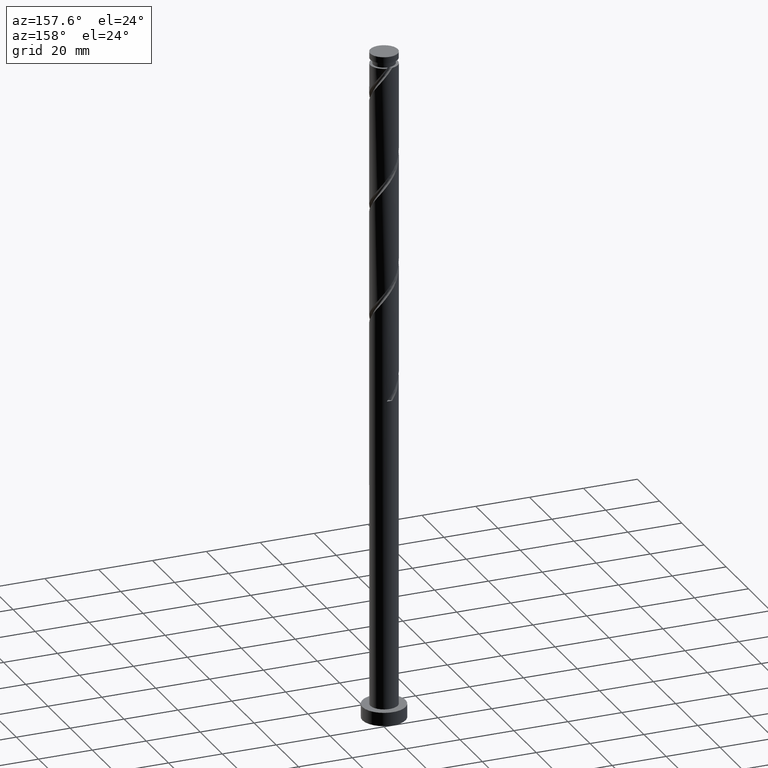
[diagram: clean part render]
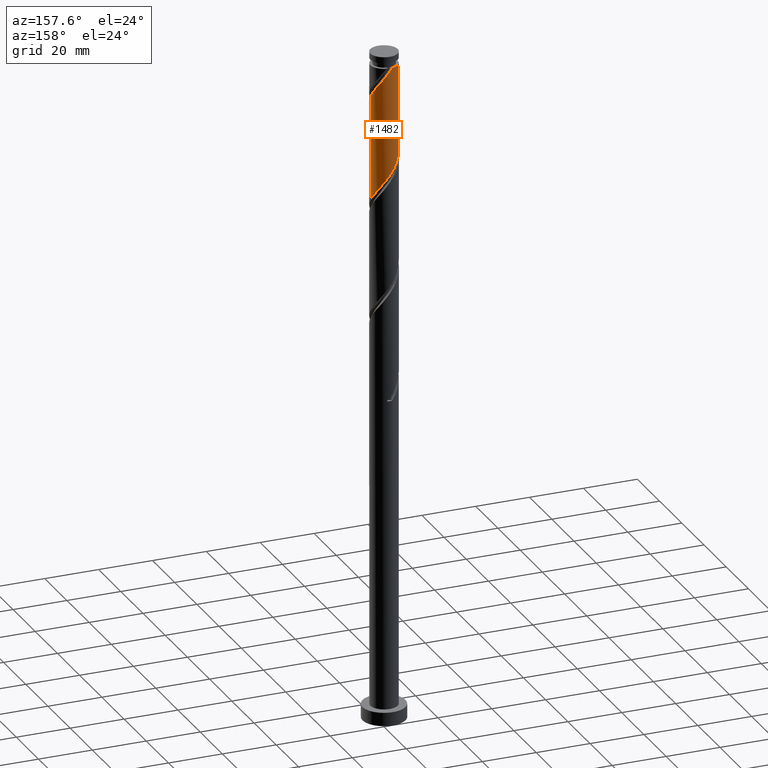
[diagram: same view with one face highlighted and labeled with its STEP entity id]
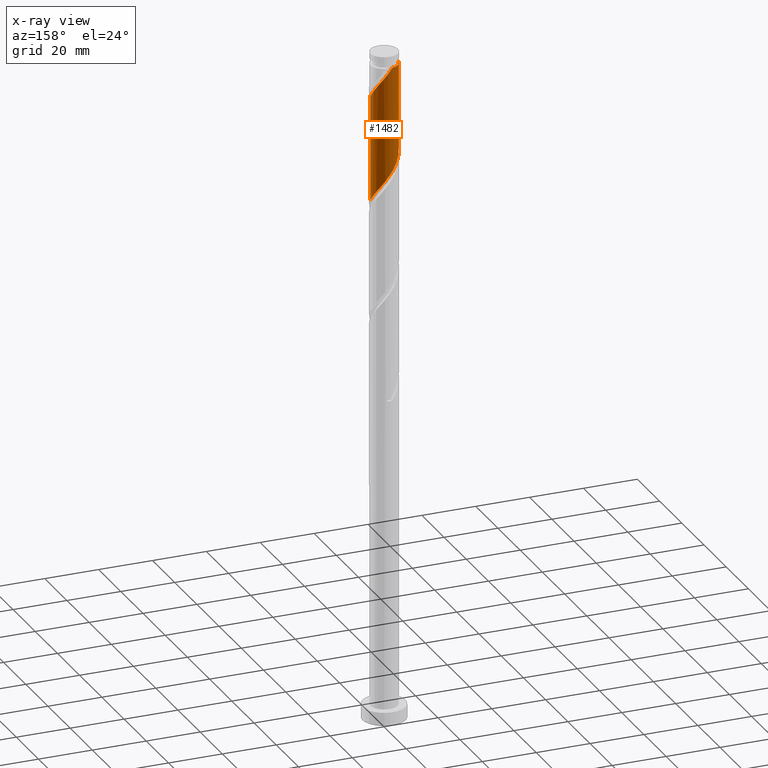
[diagram: x-ray of the same camera — body ghosted, the highlighted face saturated]
A machine part, auxiliary view. The second image highlights one B-rep face of the part: STEP entity #1482.
The next image is the same camera in x-ray: the body ghosted, the highlighted face saturated — about 0% of this face is hidden behind the body in this view.
In plain terms, the highlighted cylindrical surface (edge-blend (fillet) strip) has radius 5.1 mm, axis along (-0, -0, -1).
Its self-contained STEP definition (entity closure, byte-faithful):
#1 = FACE_OUTER_BOUND ( 'NONE', #1577, .T. ) ;
#38 = CARTESIAN_POINT ( 'NONE',  ( -3.536751729546626866, 3.674423383818059108, 210.3899012398653383 ) ) ;
#49 = CARTESIAN_POINT ( 'NONE',  ( 2.741237939645618571, 4.345007219726778835, 201.5757986757627691 ) ) ;
#57 = CARTESIAN_POINT ( 'NONE',  ( -4.313327225042888458, 2.721251228700470648, 211.9924653424294831 ) ) ;
#66 = CARTESIAN_POINT ( 'NONE',  ( 3.221324387942766876, 3.953867623940536369, 200.7745166244807535 ) ) ;
#79 = CARTESIAN_POINT ( 'NONE',  ( 2.018670203111976313, 4.724240022723055432, 241.6399012398653667 ) ) ;
#195 = CARTESIAN_POINT ( 'NONE',  ( 4.446471189112908284, 2.573396033574939512, 198.3706704706345647 ) ) ;
#203 = VECTOR ( 'NONE', #1481, 1000.000000000000000 ) ;
#226 = CARTESIAN_POINT ( 'NONE',  ( -4.839227820526198265, 1.609929843516564985, 213.5950294449935996 ) ) ;
#236 = CARTESIAN_POINT ( 'NONE',  ( 0.8294266765015260168, 5.070061594254859472, 243.2424653424294547 ) ) ;
#243 = CARTESIAN_POINT ( 'NONE',  ( 3.536751729546635303, 3.674423383818063105, 239.2360550860192347 ) ) ;
#253 = CARTESIAN_POINT ( 'NONE',  ( -1.014887185848785345, 4.997999999999972687, 245.6463114962757004 ) ) ;
#261 = CARTESIAN_POINT ( 'NONE',  ( 4.839227820526208923, 1.609929843516562320, 236.0309268808910872 ) ) ;
#269 = CARTESIAN_POINT ( 'NONE',  ( -1.014887185848785345, 4.997999999999972687, 245.6463114962757004 ) ) ;
#338 = VERTEX_POINT ( 'NONE', #1206 ) ;
#339 = CARTESIAN_POINT ( 'NONE',  ( 5.100000000000001421, 6.245698675651502811E-16, 250.0000000000000000 ) ) ;
#347 = CARTESIAN_POINT ( 'NONE',  ( -5.099999999999984546, 0.000000000000000000, 245.6463114962756435 ) ) ;
#397 = CARTESIAN_POINT ( 'NONE',  ( 5.100000000000009415, 0.2028429647175176431, 234.1658938693500147 ) ) ;
#435 = CARTESIAN_POINT ( 'NONE',  ( 5.100000000000010303, 3.858632141587965718E-15, 233.9017229537170977 ) ) ;
#470 = CARTESIAN_POINT ( 'NONE',  ( -5.099999999999999645, -5.683256642648979922E-16, 215.7242333721675038 ) ) ;
#478 = CARTESIAN_POINT ( 'NONE',  ( -5.034708694974681542, 1.022341204283935268, 214.3963114962756435 ) ) ;
#483 = CARTESIAN_POINT ( 'NONE',  ( -1.424048439806746780, 4.897150808488950346, 207.1847730347371623 ) ) ;
#492 = CARTESIAN_POINT ( 'NONE',  ( -4.643746946077711435, 2.197518482749192703, 212.7937473937114987 ) ) ;
#526 = DIRECTION ( 'NONE',  ( -0.000000000000000000, -0.000000000000000000, -1.000000000000000000 ) ) ;
#539 = CARTESIAN_POINT ( 'NONE',  ( 0.000000000000000000, 0.000000000000000000, 245.6463114962756435 ) ) ;
#561 = AXIS2_PLACEMENT_3D ( 'NONE', #539, #1093, #1133 ) ;
#575 = DIRECTION ( 'NONE',  ( -0.000000000000000000, -0.000000000000000000, -1.000000000000000000 ) ) ;
#629 = CARTESIAN_POINT ( 'NONE',  ( 3.701410836239911184, 3.562728028154290794, 199.9732345731987095 ) ) ;
#644 = CARTESIAN_POINT ( 'NONE',  ( -2.018670203111971428, 4.724240022723048327, 207.9860550860191779 ) ) ;
#681 = LINE ( 'NONE', #810, #1592 ) ;
#696 = CARTESIAN_POINT ( 'NONE',  ( 4.643746946077720317, 2.197518482749192703, 236.8322089321730175 ) ) ;
#704 = VERTEX_POINT ( 'NONE', #435 ) ;
#705 = CYLINDRICAL_SURFACE ( 'NONE', #1328, 5.100000000000001421 ) ;
#712 = VERTEX_POINT ( 'NONE', #1717 ) ;
#757 = CARTESIAN_POINT ( 'NONE',  ( 2.181496098819619256, 4.609888802437081878, 202.3770807270448984 ) ) ;
#771 = CARTESIAN_POINT ( 'NONE',  ( 5.100000000000001421, -6.161846675714157688E-15, 194.8909000388341610 ) ) ;
#795 = EDGE_CURVE ( 'NONE', #712, #338, #1546, .T. ) ;
#797 = CARTESIAN_POINT ( 'NONE',  ( 0.2107032813988189979, 5.095645604553743269, 244.0437473937115840 ) ) ;
#810 = CARTESIAN_POINT ( 'NONE',  ( -5.100000000000001421, 0.000000000000000000, 250.0000000000000000 ) ) ;
#822 = CARTESIAN_POINT ( 'NONE',  ( -0.4080201137039141668, 5.121229614852624401, 244.8450294449935427 ) ) ;
#844 = ORIENTED_EDGE ( 'NONE', *, *, #992, .F. ) ;
#850 = EDGE_CURVE ( 'NONE', #704, #338, #895, .T. ) ;
#895 = LINE ( 'NONE', #339, #203 ) ;
#899 = VERTEX_POINT ( 'NONE', #347 ) ;
#901 = CARTESIAN_POINT ( 'NONE',  ( -2.554633079098580062, 4.414051407853708753, 208.7873371373012787 ) ) ;
#992 = EDGE_CURVE ( 'NONE', #704, #1126, #1614, .T. ) ;
#1006 = ORIENTED_EDGE ( 'NONE', *, *, #1646, .F. ) ;
#1008 = DIRECTION ( 'NONE',  ( -1.000000000000000000, 0.000000000000000000, 0.000000000000000000 ) ) ;
#1017 = ORIENTED_EDGE ( 'NONE', *, *, #795, .F. ) ;
#1056 = CARTESIAN_POINT ( 'NONE',  ( 5.033095136840518791, 0.8233792221767167741, 195.9668243167884327 ) ) ;
#1072 = CARTESIAN_POINT ( 'NONE',  ( -3.982907504008063704, 3.244983974651746816, 211.1911832911473823 ) ) ;
#1093 = DIRECTION ( 'NONE',  ( -0.000000000000000000, -0.000000000000000000, -1.000000000000000000 ) ) ;
#1098 = CARTESIAN_POINT ( 'NONE',  ( 4.313327225042897339, 2.721251228700473757, 237.6334909834552320 ) ) ;
#1126 = VERTEX_POINT ( 'NONE', #269 ) ;
#1133 = DIRECTION ( 'NONE',  ( -1.000000000000000000, 0.000000000000000000, 0.000000000000000000 ) ) ;
#1206 = CARTESIAN_POINT ( 'NONE',  ( 5.100000000000001421, -6.161846675714157688E-15, 194.8909000388341894 ) ) ;
#1208 = CARTESIAN_POINT ( 'NONE',  ( -0.2107032813988129749, 5.095645604553732610, 205.5822089321730175 ) ) ;
#1242 = CARTESIAN_POINT ( 'NONE',  ( 3.090595955085197577, 4.103862792984373620, 240.0373371373012787 ) ) ;
#1251 = CARTESIAN_POINT ( 'NONE',  ( 1.424048439806753663, 4.897150808488956564, 242.4411832911474960 ) ) ;
#1313 = CARTESIAN_POINT ( 'NONE',  ( 4.689794993926362565, 2.003951824506574830, 197.5693884193525776 ) ) ;
#1322 = CARTESIAN_POINT ( 'NONE',  ( 0.4080201137038957371, 5.121229614852613743, 204.7809268808910019 ) ) ;
#1328 = AXIS2_PLACEMENT_3D ( 'NONE', #1441, #575, #1008 ) ;
#1331 = CARTESIAN_POINT ( 'NONE',  ( 4.933118798739816846, 1.434507615438204375, 196.7681063680704483 ) ) ;
#1340 = CARTESIAN_POINT ( 'NONE',  ( -5.083890084957950251, 0.4050451876843553234, 215.1975935475576591 ) ) ;
#1355 = CARTESIAN_POINT ( 'NONE',  ( 2.554633079098586723, 4.414051407853714970, 240.8386191885833796 ) ) ;
#1387 = CARTESIAN_POINT ( 'NONE',  ( 5.034708694974688648, 1.022341204283935046, 235.2296448296089295 ) ) ;
#1397 = CARTESIAN_POINT ( 'NONE',  ( 3.982907504008072141, 3.244983974651748593, 238.4347730347371055 ) ) ;
#1441 = CARTESIAN_POINT ( 'NONE',  ( 0.000000000000000000, 0.000000000000000000, 250.0000000000000000 ) ) ;
#1450 = CARTESIAN_POINT ( 'NONE',  ( 4.073941012676410622, 3.068062030864615597, 199.1719525219166940 ) ) ;
#1458 = CARTESIAN_POINT ( 'NONE',  ( 1.621754257993614612, 4.874770385147385809, 203.1783627783268287 ) ) ;
#1475 = CARTESIAN_POINT ( 'NONE',  ( -0.8294266765015214649, 5.070061594254849702, 206.3834909834550615 ) ) ;
#1481 = DIRECTION ( 'NONE',  ( -0.000000000000000000, -0.000000000000000000, -1.000000000000000000 ) ) ;
#1482 = ADVANCED_FACE ( 'NONE', ( #1 ), #705, .T. ) ;
#1492 = CARTESIAN_POINT ( 'NONE',  ( 5.083890084957960021, 0.4050451876843518262, 234.4283627783269992 ) ) ;
#1500 = CIRCLE ( 'NONE', #561, 5.099999999999984546 ) ;
#1546 =( BOUNDED_CURVE ( )  B_SPLINE_CURVE ( 2, ( #470, #1598, #1340, #478, #226, #492, #57, #1072, #38, #1760, #901, #644, #483, #1475, #1208, #1322, #1608, #1458, #757, #49, #66, #629, #1450, #195, #1313, #1331, #1056, #1765, #771 ),
 .UNSPECIFIED., .F., .T. ) 
 B_SPLINE_CURVE_WITH_KNOTS ( ( 3, 2, 2, 2, 2, 2, 2, 2, 2, 2, 2, 2, 2, 2, 3 ),
 ( 0.4295271625973832719, 0.4326923076923077094, 0.4423076923076922906, 0.4519230769230769273, 0.4615384615384615641, 0.4711538461538461453, 0.4807692307692307820, 0.4903846153846153633, 0.5000000000000000000, 0.5096153846153845812, 0.5192307692307692735, 0.5288461538461538547, 0.5384615384615384359, 0.5480769230769231282, 0.5545271625973832164 ),
 .UNSPECIFIED. ) 
 CURVE ( )  GEOMETRIC_REPRESENTATION_ITEM ( )  RATIONAL_B_SPLINE_CURVE ( ( 0.9061636035682767432, 0.9069090390690653924, 0.9090909090909219392, 0.9024626128164254801, 0.9090909090909219392, 0.9024626128164254801, 0.9090909090909219392, 0.9024626128164254801, 0.9090909090909219392, 0.9024626128164254801, 0.9090909090909219392, 0.9024626128164254801, 0.9090909090909219392, 0.9024626128164254801, 0.9090909090909219392, 0.9024626128164254801, 0.9090909090909219392, 0.9024626128164254801, 0.9090909090909219392, 0.9024626128164254801, 0.9090909090909219392, 0.9024626128164254801, 0.9090909090909219392, 0.9024626128164254801, 0.9090909090909219392, 0.9024626128164254801, 0.9090909090909219392, 0.9046444828382820269, 0.9061636035682766321 ) ) 
 REPRESENTATION_ITEM ( '' )  );
#1572 = ORIENTED_EDGE ( 'NONE', *, *, #1684, .T. ) ;
#1577 = EDGE_LOOP ( 'NONE', ( #844, #1615, #1017, #1006, #1572 ) ) ;
#1592 = VECTOR ( 'NONE', #526, 1000.000000000000000 ) ;
#1598 = CARTESIAN_POINT ( 'NONE',  ( -5.100000000000000533, 0.2028429647175181982, 215.4600624565345584 ) ) ;
#1608 = CARTESIAN_POINT ( 'NONE',  ( 1.014887185848755369, 4.998000000000000220, 203.9796448296090148 ) ) ;
#1614 =( BOUNDED_CURVE ( )  B_SPLINE_CURVE ( 2, ( #1809, #397, #1492, #1387, #261, #696, #1098, #1397, #243, #1242, #1355, #79, #1251, #236, #797, #822, #253 ),
 .UNSPECIFIED., .F., .T. ) 
 B_SPLINE_CURVE_WITH_KNOTS ( ( 3, 2, 2, 2, 2, 2, 2, 2, 3 ),
 ( 0.6795271625973833274, 0.6826923076923077094, 0.6923076923076924016, 0.7019230769230769829, 0.7115384615384616751, 0.7211538461538463674, 0.7307692307692310596, 0.7403846153846157518, 0.7500000000000003331 ),
 .UNSPECIFIED. ) 
 CURVE ( )  GEOMETRIC_REPRESENTATION_ITEM ( )  RATIONAL_B_SPLINE_CURVE ( ( 0.9061636035682828494, 0.9069090390690714987, 0.9090909090909279344, 0.9024626128164316974, 0.9090909090909279344, 0.9024626128164316974, 0.9090909090909279344, 0.9024626128164316974, 0.9090909090909279344, 0.9024626128164316974, 0.9090909090909279344, 0.9024626128164316974, 0.9090909090909279344, 0.9024626128164316974, 0.9090909090909279344, 0.9024626128164314753, 0.9090909090909281565 ) ) 
 REPRESENTATION_ITEM ( '' )  );
#1615 = ORIENTED_EDGE ( 'NONE', *, *, #850, .T. ) ;
#1646 = EDGE_CURVE ( 'NONE', #899, #712, #681, .T. ) ;
#1684 = EDGE_CURVE ( 'NONE', #899, #1126, #1500, .T. ) ;
#1717 = CARTESIAN_POINT ( 'NONE',  ( -5.099999999999999645, -5.683256642648979922E-16, 215.7242333721675038 ) ) ;
#1760 = CARTESIAN_POINT ( 'NONE',  ( -3.090595955085188695, 4.103862792984370067, 209.5886191885833227 ) ) ;
#1765 = CARTESIAN_POINT ( 'NONE',  ( 5.099999999999999645, 0.4144078365389362584, 195.4306007761825583 ) ) ;
#1809 = CARTESIAN_POINT ( 'NONE',  ( 5.100000000000010303, 3.858632141587965718E-15, 233.9017229537170977 ) ) ;